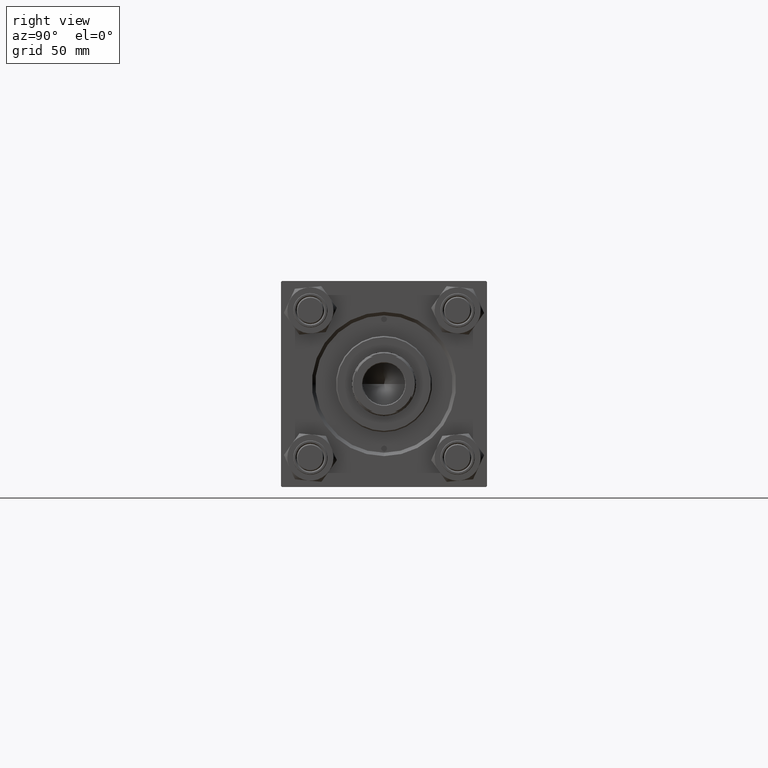
[diagram: clean part render]
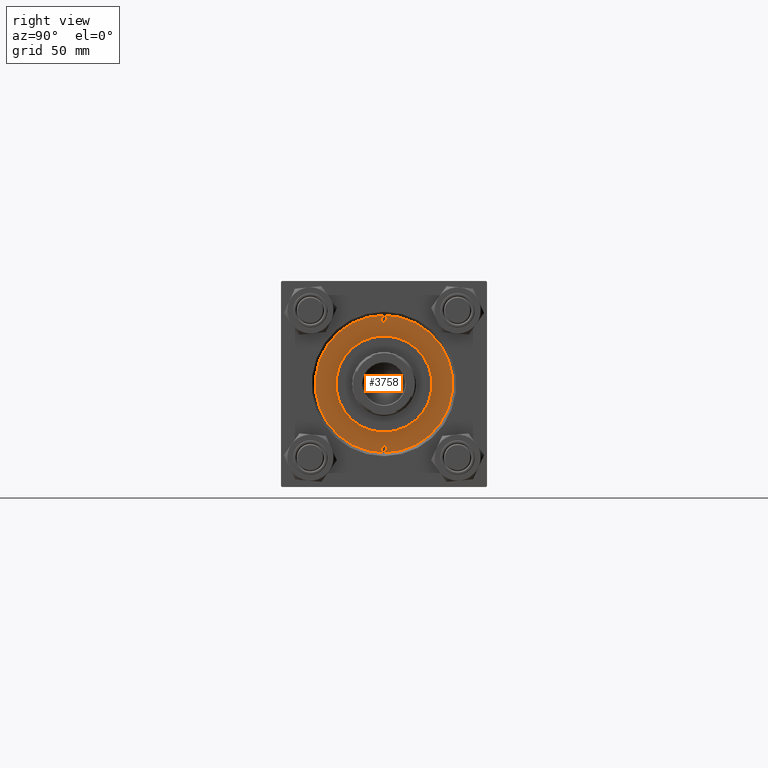
[diagram: same view with one face highlighted and labeled with its STEP entity id]
A machine part, right view. The second image highlights one B-rep face of the part: STEP entity #3758.
In plain terms, the highlighted planar face has unit normal (1, 0, -0).
Its self-contained STEP definition (entity closure, byte-faithful):
#259 = FACE_BOUND ( 'NONE', #1784, .T. ) ;
#292 = CARTESIAN_POINT ( 'NONE',  ( -29.50000000000000000, 1.530808498934192803E-16, 28.69999999999999929 ) ) ;
#640 = EDGE_CURVE ( 'NONE', #13265, #46017, #13240, .T. ) ;
#854 = ORIENTED_EDGE ( 'NONE', *, *, #48200, .T. ) ;
#1006 = CARTESIAN_POINT ( 'NONE',  ( 0.000000000000000000, 0.000000000000000000, 28.69999999999999929 ) ) ;
#1170 = CARTESIAN_POINT ( 'NONE',  ( 29.50000000000000000, 0.000000000000000000, 28.69999999999999929 ) ) ;
#1772 = ORIENTED_EDGE ( 'NONE', *, *, #22054, .F. ) ;
#1784 = EDGE_LOOP ( 'NONE', ( #44049, #49099 ) ) ;
#1963 = CARTESIAN_POINT ( 'NONE',  ( 21.00000000000000000, 2.571758278209441661E-15, 28.69999999999999929 ) ) ;
#3690 = AXIS2_PLACEMENT_3D ( 'NONE', #24736, #43181, #13090 ) ;
#3758 = ADVANCED_FACE ( 'NONE', ( #30860, #259, #23547, #38953 ), #43237, .T. ) ;
#3980 = ORIENTED_EDGE ( 'NONE', *, *, #19224, .F. ) ;
#6059 = DIRECTION ( 'NONE',  ( 1.000000000000000000, 0.000000000000000000, 0.000000000000000000 ) ) ;
#6459 = EDGE_CURVE ( 'NONE', #25399, #28349, #38430, .T. ) ;
#7899 = VERTEX_POINT ( 'NONE', #35564 ) ;
#8170 = EDGE_LOOP ( 'NONE', ( #46229, #1772 ) ) ;
#10104 = CARTESIAN_POINT ( 'NONE',  ( 0.000000000000000000, 0.000000000000000000, 28.69999999999999929 ) ) ;
#10164 = VERTEX_POINT ( 'NONE', #12426 ) ;
#11245 = AXIS2_PLACEMENT_3D ( 'NONE', #15638, #45730, #23478 ) ;
#11641 = DIRECTION ( 'NONE',  ( 1.000000000000000000, 0.000000000000000000, -0.000000000000000000 ) ) ;
#12426 = CARTESIAN_POINT ( 'NONE',  ( -21.00000000000000000, 0.000000000000000000, 28.69999999999999929 ) ) ;
#13090 = DIRECTION ( 'NONE',  ( 1.000000000000000000, 0.000000000000000000, 0.000000000000000000 ) ) ;
#13240 = CIRCLE ( 'NONE', #17265, 1.249999999999997558 ) ;
#13265 = VERTEX_POINT ( 'NONE', #1170 ) ;
#13763 = AXIS2_PLACEMENT_3D ( 'NONE', #42332, #34745, #15548 ) ;
#13778 = DIRECTION ( 'NONE',  ( 0.000000000000000000, 0.000000000000000000, 1.000000000000000000 ) ) ;
#15548 = DIRECTION ( 'NONE',  ( 1.000000000000000000, 0.000000000000000000, 0.000000000000000000 ) ) ;
#15638 = CARTESIAN_POINT ( 'NONE',  ( -28.25000000000000000, 0.000000000000000000, 28.69999999999999929 ) ) ;
#15959 = DIRECTION ( 'NONE',  ( 0.000000000000000000, 0.000000000000000000, 1.000000000000000000 ) ) ;
#17265 = AXIS2_PLACEMENT_3D ( 'NONE', #47524, #28328, #28577 ) ;
#17469 = DIRECTION ( 'NONE',  ( 0.000000000000000000, 0.000000000000000000, 1.000000000000000000 ) ) ;
#19224 = EDGE_CURVE ( 'NONE', #22218, #7899, #49229, .T. ) ;
#19655 = DIRECTION ( 'NONE',  ( 1.000000000000000000, 0.000000000000000000, 0.000000000000000000 ) ) ;
#20679 = CIRCLE ( 'NONE', #3690, 1.249999999999997558 ) ;
#22054 = EDGE_CURVE ( 'NONE', #26428, #10164, #48345, .T. ) ;
#22218 = VERTEX_POINT ( 'NONE', #292 ) ;
#22998 = AXIS2_PLACEMENT_3D ( 'NONE', #1006, #46290, #11641 ) ;
#23185 = EDGE_CURVE ( 'NONE', #46017, #13265, #25817, .T. ) ;
#23478 = DIRECTION ( 'NONE',  ( 1.000000000000000000, 0.000000000000000000, 0.000000000000000000 ) ) ;
#23547 = FACE_BOUND ( 'NONE', #8170, .T. ) ;
#23924 = CARTESIAN_POINT ( 'NONE',  ( 30.00000000000000000, 3.673940397442059178E-15, 28.69999999999999929 ) ) ;
#23945 = DIRECTION ( 'NONE',  ( 0.000000000000000000, 0.000000000000000000, 1.000000000000000000 ) ) ;
#24736 = CARTESIAN_POINT ( 'NONE',  ( -28.25000000000000000, 0.000000000000000000, 28.69999999999999929 ) ) ;
#25399 = VERTEX_POINT ( 'NONE', #29657 ) ;
#25817 = CIRCLE ( 'NONE', #42754, 1.249999999999997558 ) ;
#26428 = VERTEX_POINT ( 'NONE', #1963 ) ;
#27153 = AXIS2_PLACEMENT_3D ( 'NONE', #10104, #17469, #6059 ) ;
#27165 = EDGE_LOOP ( 'NONE', ( #35430, #3980 ) ) ;
#27851 = ORIENTED_EDGE ( 'NONE', *, *, #6459, .T. ) ;
#28328 = DIRECTION ( 'NONE',  ( 0.000000000000000000, 0.000000000000000000, 1.000000000000000000 ) ) ;
#28349 = VERTEX_POINT ( 'NONE', #23924 ) ;
#28557 = AXIS2_PLACEMENT_3D ( 'NONE', #30864, #15959, #31366 ) ;
#28577 = DIRECTION ( 'NONE',  ( 1.000000000000000000, 0.000000000000000000, 0.000000000000000000 ) ) ;
#29343 = CIRCLE ( 'NONE', #28557, 21.00000000000000000 ) ;
#29657 = CARTESIAN_POINT ( 'NONE',  ( -30.00000000000000000, 0.000000000000000000, 28.69999999999999929 ) ) ;
#30860 = FACE_BOUND ( 'NONE', #27165, .T. ) ;
#30864 = CARTESIAN_POINT ( 'NONE',  ( 0.000000000000000000, 0.000000000000000000, 28.69999999999999929 ) ) ;
#31366 = DIRECTION ( 'NONE',  ( 1.000000000000000000, 0.000000000000000000, 0.000000000000000000 ) ) ;
#31989 = EDGE_LOOP ( 'NONE', ( #27851, #854 ) ) ;
#32958 = EDGE_CURVE ( 'NONE', #10164, #26428, #29343, .T. ) ;
#34745 = DIRECTION ( 'NONE',  ( 0.000000000000000000, 0.000000000000000000, 1.000000000000000000 ) ) ;
#35430 = ORIENTED_EDGE ( 'NONE', *, *, #43347, .F. ) ;
#35436 = AXIS2_PLACEMENT_3D ( 'NONE', #38855, #23945, #19655 ) ;
#35564 = CARTESIAN_POINT ( 'NONE',  ( -27.00000000000000355, 0.000000000000000000, 28.69999999999999929 ) ) ;
#35571 = CIRCLE ( 'NONE', #13763, 30.00000000000000000 ) ;
#36786 = DIRECTION ( 'NONE',  ( 1.000000000000000000, 0.000000000000000000, 0.000000000000000000 ) ) ;
#37064 = CARTESIAN_POINT ( 'NONE',  ( 27.00000000000000355, 1.530808498934192803E-16, 28.69999999999999929 ) ) ;
#37778 = CARTESIAN_POINT ( 'NONE',  ( 28.25000000000000000, 0.000000000000000000, 28.69999999999999929 ) ) ;
#38430 = CIRCLE ( 'NONE', #27153, 30.00000000000000000 ) ;
#38855 = CARTESIAN_POINT ( 'NONE',  ( 0.000000000000000000, 0.000000000000000000, 28.69999999999999929 ) ) ;
#38953 = FACE_OUTER_BOUND ( 'NONE', #31989, .T. ) ;
#42332 = CARTESIAN_POINT ( 'NONE',  ( 0.000000000000000000, 0.000000000000000000, 28.69999999999999929 ) ) ;
#42754 = AXIS2_PLACEMENT_3D ( 'NONE', #37778, #13778, #36786 ) ;
#43181 = DIRECTION ( 'NONE',  ( 0.000000000000000000, 0.000000000000000000, 1.000000000000000000 ) ) ;
#43237 = PLANE ( 'NONE',  #22998 ) ;
#43347 = EDGE_CURVE ( 'NONE', #7899, #22218, #20679, .T. ) ;
#44049 = ORIENTED_EDGE ( 'NONE', *, *, #640, .F. ) ;
#45730 = DIRECTION ( 'NONE',  ( 0.000000000000000000, 0.000000000000000000, 1.000000000000000000 ) ) ;
#46017 = VERTEX_POINT ( 'NONE', #37064 ) ;
#46229 = ORIENTED_EDGE ( 'NONE', *, *, #32958, .F. ) ;
#46290 = DIRECTION ( 'NONE',  ( 0.000000000000000000, 0.000000000000000000, 1.000000000000000000 ) ) ;
#47524 = CARTESIAN_POINT ( 'NONE',  ( 28.25000000000000000, 0.000000000000000000, 28.69999999999999929 ) ) ;
#48200 = EDGE_CURVE ( 'NONE', #28349, #25399, #35571, .T. ) ;
#48345 = CIRCLE ( 'NONE', #35436, 21.00000000000000000 ) ;
#49099 = ORIENTED_EDGE ( 'NONE', *, *, #23185, .F. ) ;
#49229 = CIRCLE ( 'NONE', #11245, 1.249999999999997558 ) ;